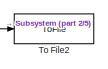
[diagram: root canvas - part 1/5, top right region]
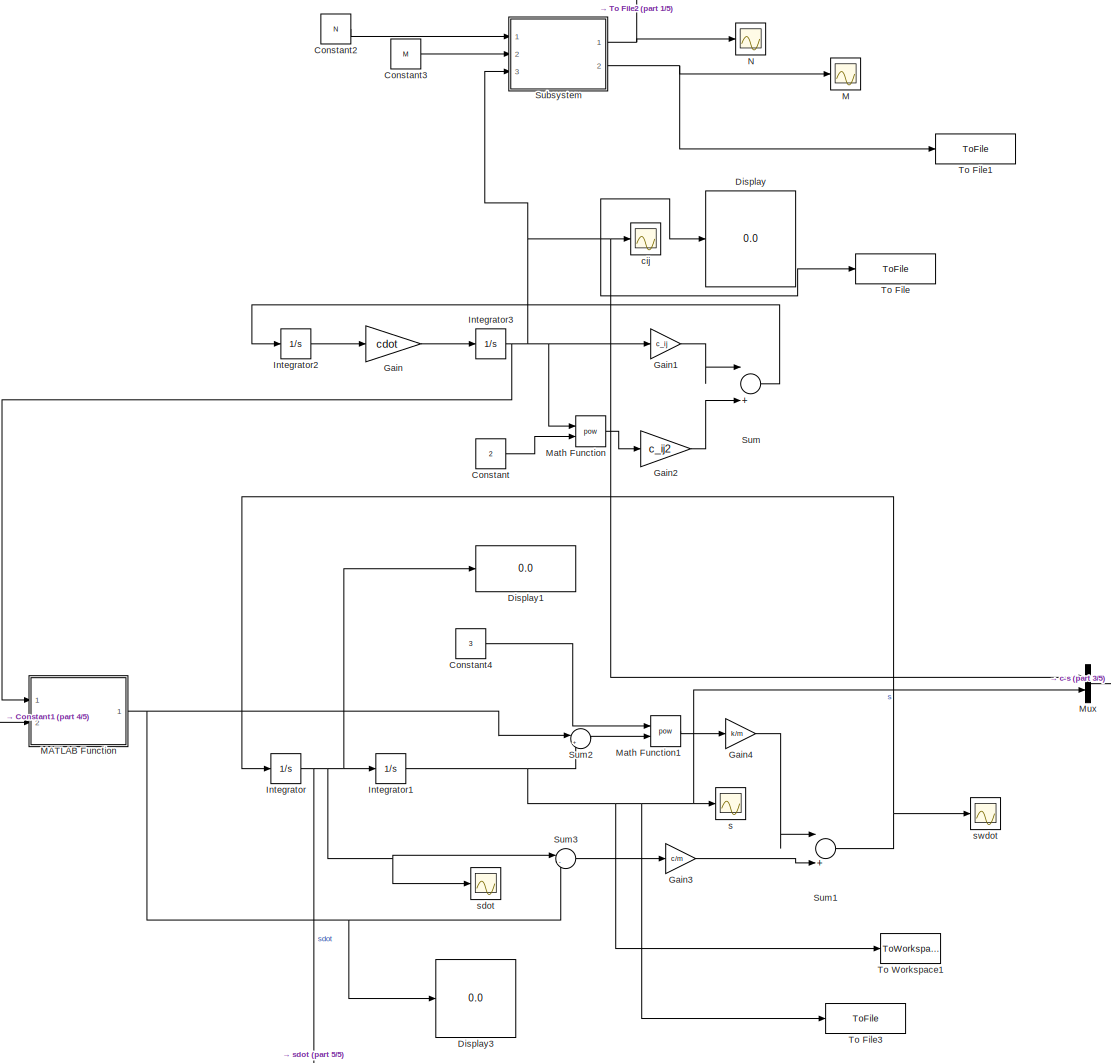
[diagram: root canvas - part 2/5, most of the canvas]
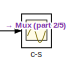
[diagram: root canvas - part 3/5, middle right region]
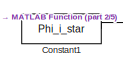
[diagram: root canvas - part 4/5, middle left region]
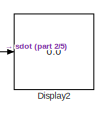
[diagram: root canvas - part 5/5, bottom center region]
MODEL slx_5ca83b6a47fa
KIND model
CONFIG AbsTol = auto
CONFIG EnableMultiTasking = off
CONFIG FixedStep = auto
CONFIG InitFcn = init
CONFIG MaxStep = auto
CONFIG MinStep = auto
CONFIG RelTol = 1e-3
CONFIG SampleTimeConstraint = Unconstrained
CONFIG Solver = VariableStepAuto
CONFIG SolverName = VariableStepAuto
CONFIG StartTime = 0.0
CONFIG StopTime = 10.0
BLOCK [Constant] Constant
  Value = 2
BLOCK [Constant] Constant1
  Value = Phi_i_star
BLOCK [Constant] Constant2
  Value = N
BLOCK [Constant] Constant3
  Value = M
BLOCK [Constant] Constant4
  Value = 3
BLOCK [Display] Display
  Decimation = 1
  Ports = [1]
BLOCK [Display] Display1
  Decimation = 1
  Ports = [1]
BLOCK [Display] Display2
  Decimation = 1
  Ports = [1]
BLOCK [Display] Display3
  Decimation = 1
  Ports = [1]
BLOCK [Gain] Gain
  Gain = cdot
  OutDataTypeStr = Inherit: Inherit via internal rule
  ParamDataTypeStr = Inherit: Inherit via internal rule
  SaturateOnIntegerOverflow = off
BLOCK [Gain] Gain1
  Gain = c_ij
  OutDataTypeStr = Inherit: Inherit via internal rule
  ParamDataTypeStr = Inherit: Inherit via internal rule
  SaturateOnIntegerOverflow = off
BLOCK [Gain] Gain2
  Gain = c_ij2
  OutDataTypeStr = Inherit: Inherit via internal rule
  ParamDataTypeStr = Inherit: Inherit via internal rule
  SaturateOnIntegerOverflow = off
BLOCK [Gain] Gain3
  Gain = c/m
  OutDataTypeStr = Inherit: Inherit via internal rule
  ParamDataTypeStr = Inherit: Inherit via internal rule
  SaturateOnIntegerOverflow = off
BLOCK [Gain] Gain4
  Gain = k/m
  OutDataTypeStr = Inherit: Inherit via internal rule
  ParamDataTypeStr = Inherit: Inherit via internal rule
  SaturateOnIntegerOverflow = off
BLOCK [Integrator] Integrator
  Ports = [1, 1]
BLOCK [Integrator] Integrator1
  Ports = [1, 1]
BLOCK [Integrator] Integrator2
  Ports = [1, 1]
BLOCK [Integrator] Integrator3
  Ports = [1, 1]
BLOCK [Scope] M
  Floating = off
  NumInputPorts = 1
  Ports = [1]
  ScopeSpecificationString = Simulink.scopes.TimeScopeBlockCfg('CurrentConfiguration', extmgr.ConfigurationSet(extmgr.Configuration('Core','General UI',true),extmgr.Configuration('Core','Source UI',true),extmgr.Configuration('Sources','WiredSimulink',true,'DataLoggingVariableName','ScopeData2'),extmgr.Configuration('Visuals','Time Domain',true,'SerializedDisplays',{struct('MinYLimReal','-1.00000','MaxYLimReal','1.00000','YLab...<+1571ch>
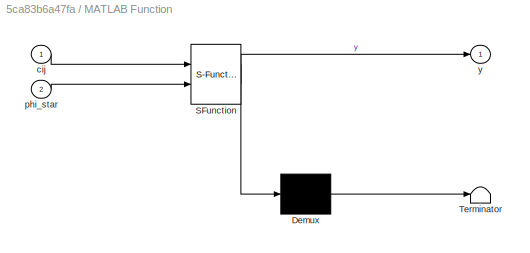
BLOCK [SubSystem] MATLAB Function
  ErrorFcn = Stateflow.Translate.translate
  PermitHierarchicalResolution = ExplicitOnly
  Ports = [2, 1]
  RequestExecContextInheritance = off
  SFBlockType = MATLAB Function
  TreatAsAtomicUnit = on
BLOCK [Demux] MATLAB Function/ Demux 
  Outputs = 1
  Ports = [1, 1]
BLOCK [S-Function] MATLAB Function/ SFunction 
  EnableBusSupport = on
  FunctionName = sf_sfun
  PortCounts = [2 2]
  Ports = [2, 2]
  SFcnIsStateOwnerBlock = off
  SFunctionDeploymentMode = off
  Tag = Stateflow S-Function NES1 2
BLOCK [Terminator] MATLAB Function/ Terminator 
BLOCK [Inport] MATLAB Function/cij
  IconDisplay = Port number
BLOCK [Inport] MATLAB Function/phi_star
  IconDisplay = Port number
  Port = 2
BLOCK [Outport] MATLAB Function/y
  IconDisplay = Port number
BLOCK [Math] Math Function
  Operator = pow
  Ports = [2, 1]
BLOCK [Math] Math Function1
  Operator = pow
  Ports = [2, 1]
BLOCK [Mux] Mux
  DisplayOption = bar
  Inputs = 2
  Ports = [2, 1]
BLOCK [Scope] N
  Floating = off
  NumInputPorts = 1
  Ports = [1]
  ScopeSpecificationString = Simulink.scopes.TimeScopeBlockCfg('CurrentConfiguration', extmgr.ConfigurationSet(extmgr.Configuration('Core','General UI',true),extmgr.Configuration('Core','Source UI',true),extmgr.Configuration('Sources','WiredSimulink',true,'DataLoggingVariableName','ScopeData1'),extmgr.Configuration('Visuals','Time Domain',true,'SerializedDisplays',{struct('MinYLimReal','-1.00000','MaxYLimReal','1.00000','YLab...<+1571ch>
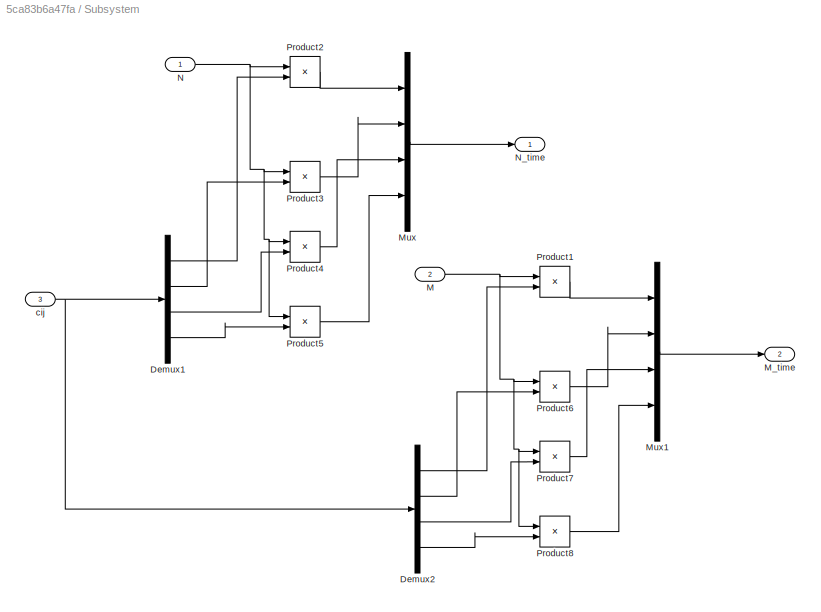
BLOCK [SubSystem] Subsystem
  Ports = [3, 2]
  RequestExecContextInheritance = off
BLOCK [Demux] Subsystem/Demux1
  DisplayOption = bar
  Ports = [1, 4]
BLOCK [Demux] Subsystem/Demux2
  DisplayOption = bar
  Ports = [1, 4]
BLOCK [Inport] Subsystem/M
  IconDisplay = Port number
  Port = 2
BLOCK [Outport] Subsystem/M_time 
  IconDisplay = Port number
  Port = 2
BLOCK [Mux] Subsystem/Mux
  DisplayOption = bar
  Ports = [4, 1]
BLOCK [Mux] Subsystem/Mux1
  DisplayOption = bar
  Ports = [4, 1]
BLOCK [Inport] Subsystem/N
  IconDisplay = Port number
BLOCK [Outport] Subsystem/N_time 
  IconDisplay = Port number
BLOCK [Product] Subsystem/Product1
  InputSameDT = off
  OutDataTypeStr = Inherit: Inherit via internal rule
  Ports = [2, 1]
  RndMeth = Floor
  SaturateOnIntegerOverflow = off
BLOCK [Product] Subsystem/Product2
  InputSameDT = off
  OutDataTypeStr = Inherit: Inherit via internal rule
  Ports = [2, 1]
  RndMeth = Floor
  SaturateOnIntegerOverflow = off
BLOCK [Product] Subsystem/Product3
  InputSameDT = off
  OutDataTypeStr = Inherit: Inherit via internal rule
  Ports = [2, 1]
  RndMeth = Floor
  SaturateOnIntegerOverflow = off
BLOCK [Product] Subsystem/Product4
  InputSameDT = off
  OutDataTypeStr = Inherit: Inherit via internal rule
  Ports = [2, 1]
  RndMeth = Floor
  SaturateOnIntegerOverflow = off
BLOCK [Product] Subsystem/Product5
  InputSameDT = off
  OutDataTypeStr = Inherit: Inherit via internal rule
  Ports = [2, 1]
  RndMeth = Floor
  SaturateOnIntegerOverflow = off
BLOCK [Product] Subsystem/Product6
  InputSameDT = off
  OutDataTypeStr = Inherit: Inherit via internal rule
  Ports = [2, 1]
  RndMeth = Floor
  SaturateOnIntegerOverflow = off
BLOCK [Product] Subsystem/Product7
  InputSameDT = off
  OutDataTypeStr = Inherit: Inherit via internal rule
  Ports = [2, 1]
  RndMeth = Floor
  SaturateOnIntegerOverflow = off
BLOCK [Product] Subsystem/Product8
  InputSameDT = off
  OutDataTypeStr = Inherit: Inherit via internal rule
  Ports = [2, 1]
  RndMeth = Floor
  SaturateOnIntegerOverflow = off
BLOCK [Inport] Subsystem/cij
  IconDisplay = Port number
  Port = 3
BLOCK [Sum] Sum
  InputSameDT = off
  Inputs = |++
  OutDataTypeStr = Inherit: Inherit via internal rule
  Ports = [2, 1]
  SaturateOnIntegerOverflow = off
BLOCK [Sum] Sum1
  InputSameDT = off
  Inputs = |++
  OutDataTypeStr = Inherit: Inherit via internal rule
  Ports = [2, 1]
  SaturateOnIntegerOverflow = off
BLOCK [Sum] Sum2
  IconShape = round
  InputSameDT = off
  Inputs = |+-
  OutDataTypeStr = Inherit: Inherit via internal rule
  Ports = [2, 1]
  SaturateOnIntegerOverflow = off
BLOCK [Sum] Sum3
  IconShape = round
  InputSameDT = off
  Inputs = |-+
  OutDataTypeStr = Inherit: Inherit via internal rule
  Ports = [2, 1]
  SaturateOnIntegerOverflow = off
BLOCK [ToFile] To File
  Filename = cij.mat
  MatrixName = cij
  Ports = [1]
BLOCK [ToFile] To File1
  Filename = M.mat
  MatrixName = M
  Ports = [1]
BLOCK [ToFile] To File2
  Filename = N.mat
  MatrixName = N
  Ports = [1]
BLOCK [ToFile] To File3
  Filename = s.mat
  MatrixName = s
  Ports = [1]
  SaveFormat = Timeseries
BLOCK [ToWorkspace] To Workspace1
  FixptAsFi = on
  MaxDataPoints = inf
  Ports = [1]
  SampleTime = -1
  SaveFormat = Structure With Time
  VariableName = s
BLOCK [Scope] c-s
  Floating = off
  NumInputPorts = 1
  Ports = [1]
  ScopeSpecificationString = Simulink.scopes.TimeScopeBlockCfg('CurrentConfiguration', extmgr.ConfigurationSet(extmgr.Configuration('Core','General UI',true),extmgr.Configuration('Core','Source UI',true),extmgr.Configuration('Sources','WiredSimulink',true,'DataLoggingVariableName','ScopeData4'),extmgr.Configuration('Visuals','Time Domain',true,'SerializedDisplays',{struct('MinYLimReal','-0.87554','MaxYLimReal','7.87989','YLab...<+1479ch>
BLOCK [Scope] cij
  Floating = off
  NumInputPorts = 1
  Ports = [1]
  ScopeSpecificationString = Simulink.scopes.TimeScopeBlockCfg('CurrentConfiguration', extmgr.ConfigurationSet(extmgr.Configuration('Core','General UI',true),extmgr.Configuration('Core','Source UI',true),extmgr.Configuration('Sources','WiredSimulink',true),extmgr.Configuration('Visuals','Time Domain',true,'SerializedDisplays',{struct('MinYLimReal','-1.00000','MaxYLimReal','1.00000','YLabelReal','','MinYLimMag','0.00000','MaxY...<+1455ch>
BLOCK [Scope] s
  Floating = off
  NumInputPorts = 1
  Ports = [1]
  ScopeSpecificationString = Simulink.scopes.TimeScopeBlockCfg('CurrentConfiguration', extmgr.ConfigurationSet(extmgr.Configuration('Core','General UI',true),extmgr.Configuration('Core','Source UI',true),extmgr.Configuration('Sources','WiredSimulink',true,'DataLoggingVariableName','ScopeData1'),extmgr.Configuration('Visuals','Time Domain',true,'SerializedDisplays',{struct('MinYLimReal','-0.87554','MaxYLimReal','7.87989','YLab...<+1415ch>
BLOCK [Scope] sdot
  Floating = off
  NumInputPorts = 1
  Ports = [1]
  ScopeSpecificationString = Simulink.scopes.TimeScopeBlockCfg('CurrentConfiguration', extmgr.ConfigurationSet(extmgr.Configuration('Core','General UI',true),extmgr.Configuration('Core','Source UI',true),extmgr.Configuration('Sources','WiredSimulink',true,'DataLoggingVariableName','ScopeData2'),extmgr.Configuration('Visuals','Time Domain',true,'SerializedDisplays',{struct('MinYLimReal','-68.7968','MaxYLimReal','619.17119','YL...<+1367ch>
BLOCK [Scope] swdot
  Floating = off
  NumInputPorts = 1
  Ports = [1]
  ScopeSpecificationString = Simulink.scopes.TimeScopeBlockCfg('CurrentConfiguration', extmgr.ConfigurationSet(extmgr.Configuration('Core','General UI',true),extmgr.Configuration('Core','Source UI',true),extmgr.Configuration('Sources','WiredSimulink',true,'DataLoggingVariableName','ScopeData3'),extmgr.Configuration('Visuals','Time Domain',true,'SerializedDisplays',{struct('MinYLimReal','-1822606.59717','MaxYLimReal','13558067...<+1412ch>
LINE Constant1:1 -> MATLAB Function:2
LINE Constant2:1 -> Subsystem:1
LINE Constant3:1 -> Subsystem:2
LINE Constant4:1 -> Math Function1:1
LINE Constant:1 -> Math Function:2
LINE Gain1:1 -> Sum:1
LINE Gain2:1 -> Sum:2
LINE Gain3:1 -> Sum1:2
LINE Gain4:1 -> Sum1:1
LINE Gain:1 -> Integrator3:1
NET Integrator1:1 -> Mux:2, Sum2:2, To File3:1, To Workspace1:1, s:1
LINE Integrator2:1 -> Gain:1
NET Integrator3:1 -> Display:1, Gain1:1, MATLAB Function:1, Math Function:1, Mux:1, Subsystem:3, To File:1, cij:1
NET Integrator:1 -> Display1:1, Display2:1, Integrator1:1, Sum3:1, sdot:1
NET MATLAB Function:1 -> Display3:1, Sum2:1, Sum3:2
LINE Math Function1:1 -> Gain4:1
LINE Math Function:1 -> Gain2:1
LINE Mux:1 -> c-s:1
LINE Subsystem/Demux1:1 -> Subsystem/Product2:2
LINE Subsystem/Demux1:2 -> Subsystem/Product3:2
LINE Subsystem/Demux1:3 -> Subsystem/Product4:2
LINE Subsystem/Demux1:4 -> Subsystem/Product5:2
LINE Subsystem/Demux2:1 -> Subsystem/Product1:2
LINE Subsystem/Demux2:2 -> Subsystem/Product6:2
LINE Subsystem/Demux2:3 -> Subsystem/Product7:2
LINE Subsystem/Demux2:4 -> Subsystem/Product8:2
NET Subsystem/M:1 -> Subsystem/Product1:1, Subsystem/Product6:1, Subsystem/Product7:1, Subsystem/Product8:1
LINE Subsystem/Mux1:1 -> Subsystem/M_time :1
LINE Subsystem/Mux:1 -> Subsystem/N_time :1
NET Subsystem/N:1 -> Subsystem/Product2:1, Subsystem/Product3:1, Subsystem/Product4:1, Subsystem/Product5:1
LINE Subsystem/Product1:1 -> Subsystem/Mux1:1
LINE Subsystem/Product2:1 -> Subsystem/Mux:1
LINE Subsystem/Product3:1 -> Subsystem/Mux:2
LINE Subsystem/Product4:1 -> Subsystem/Mux:3
LINE Subsystem/Product5:1 -> Subsystem/Mux:4
LINE Subsystem/Product6:1 -> Subsystem/Mux1:2
LINE Subsystem/Product7:1 -> Subsystem/Mux1:3
LINE Subsystem/Product8:1 -> Subsystem/Mux1:4
NET Subsystem/cij:1 -> Subsystem/Demux1:1, Subsystem/Demux2:1
NET Subsystem:1 -> N:1, To File2:1
NET Subsystem:2 -> M:1, To File1:1
NET Sum1:1 -> Integrator:1, swdot:1
LINE Sum2:1 -> Math Function1:2
LINE Sum3:1 -> Gain3:1
LINE Sum:1 -> Integrator2:1
note: NET lines group one-source signal fan-out (src -> all destinations, sorted); 1:1 wires keep LINE
CHART MATLAB Function states=1 transitions=1
  STATE_LABEL 'eML_blk_kernel()'
  STATE_LABEL 'SCRIPT:\nfunction y = fcn(cij,phi_star)\ny1 = phi_star.*cij;\ny =sum(y1);\nend\n'
